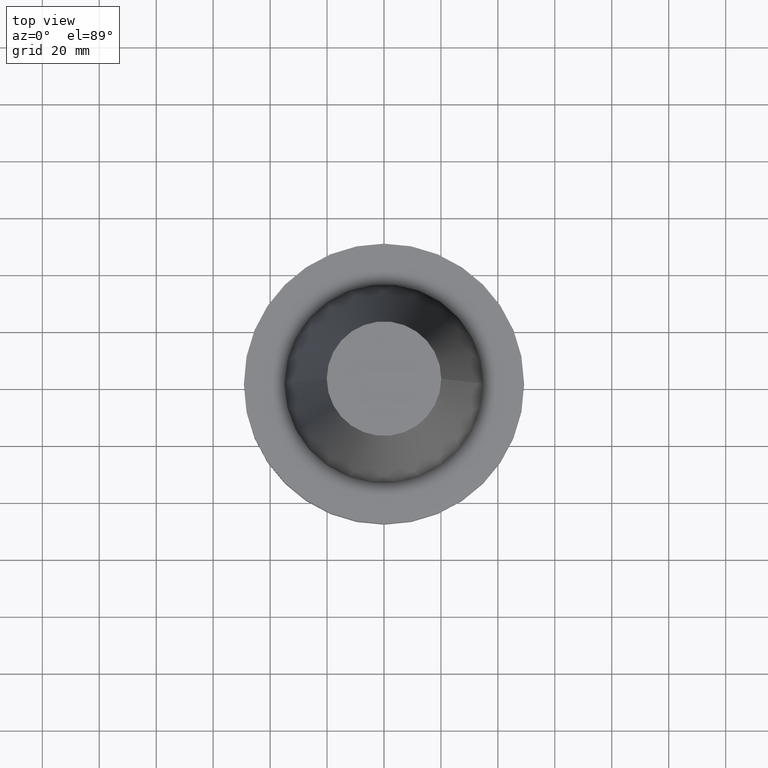
[diagram: clean part render]
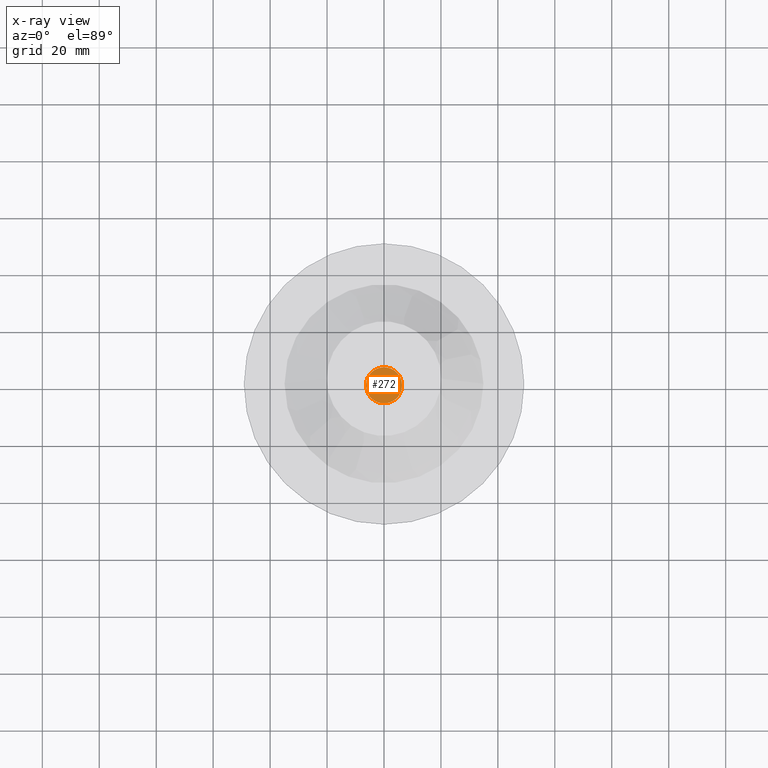
[diagram: x-ray — body ghosted, one internal face saturated and labeled with its STEP entity id]
A machine part, top view, then the same camera in x-ray: the body is ghosted and one INTERNAL B-rep face — a face not visible from any outside direction — is saturated and labeled: STEP entity #272.
In plain terms, the highlighted planar face has unit normal (0, -0, 1).
Its self-contained STEP definition (entity closure, byte-faithful):
#6 = DIRECTION ( 'NONE',  ( 0.000000000000000000, -0.000000000000000000, 1.000000000000000000 ) ) ;
#34 = VERTEX_POINT ( 'NONE', #767 ) ;
#115 = DIRECTION ( 'NONE',  ( -0.000000000000000000, -0.000000000000000000, 1.000000000000000000 ) ) ;
#121 = EDGE_CURVE ( 'NONE', #34, #387, #615, .T. ) ;
#143 = CIRCLE ( 'NONE', #536, 6.349999999999990763 ) ;
#146 = DIRECTION ( 'NONE',  ( 1.000000000000000000, 0.000000000000000000, 0.000000000000000000 ) ) ;
#147 = CARTESIAN_POINT ( 'NONE',  ( 0.000000000000000000, 34.92499999999999716, -35.04999999999999716 ) ) ;
#243 = AXIS2_PLACEMENT_3D ( 'NONE', #846, #115, #520 ) ;
#252 = CARTESIAN_POINT ( 'NONE',  ( 0.000000000000000000, 0.000000000000000000, -35.04999999999999716 ) ) ;
#272 = ADVANCED_FACE ( 'NONE', ( #392 ), #670, .F. ) ;
#303 = ORIENTED_EDGE ( 'NONE', *, *, #634, .F. ) ;
#319 = EDGE_LOOP ( 'NONE', ( #303, #793 ) ) ;
#333 = DIRECTION ( 'NONE',  ( -0.000000000000000000, -0.000000000000000000, 1.000000000000000000 ) ) ;
#387 = VERTEX_POINT ( 'NONE', #416 ) ;
#392 = FACE_OUTER_BOUND ( 'NONE', #319, .T. ) ;
#416 = CARTESIAN_POINT ( 'NONE',  ( 6.349999999999990763, 0.000000000000000000, -35.04999999999999716 ) ) ;
#520 = DIRECTION ( 'NONE',  ( 1.000000000000000000, 0.000000000000000000, 0.000000000000000000 ) ) ;
#536 = AXIS2_PLACEMENT_3D ( 'NONE', #252, #333, #146 ) ;
#587 = AXIS2_PLACEMENT_3D ( 'NONE', #147, #6, #677 ) ;
#615 = CIRCLE ( 'NONE', #243, 6.349999999999990763 ) ;
#634 = EDGE_CURVE ( 'NONE', #387, #34, #143, .T. ) ;
#670 = PLANE ( 'NONE',  #587 ) ;
#677 = DIRECTION ( 'NONE',  ( 1.000000000000000000, 0.000000000000000000, 0.000000000000000000 ) ) ;
#767 = CARTESIAN_POINT ( 'NONE',  ( -6.349999999999990763, 7.776507174585682302E-16, -35.04999999999999716 ) ) ;
#793 = ORIENTED_EDGE ( 'NONE', *, *, #121, .F. ) ;
#846 = CARTESIAN_POINT ( 'NONE',  ( 0.000000000000000000, 0.000000000000000000, -35.04999999999999716 ) ) ;